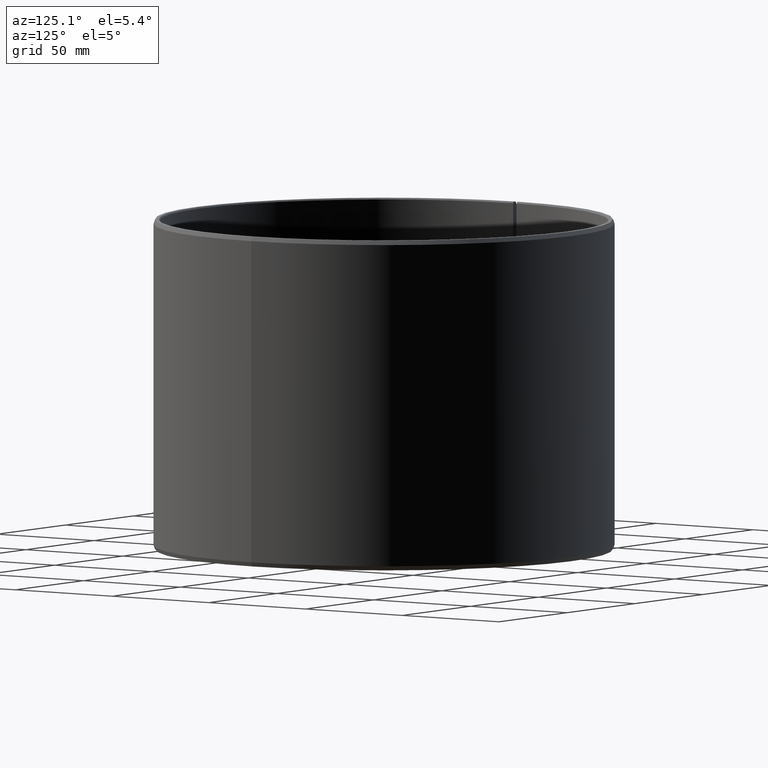
[diagram: clean part render]
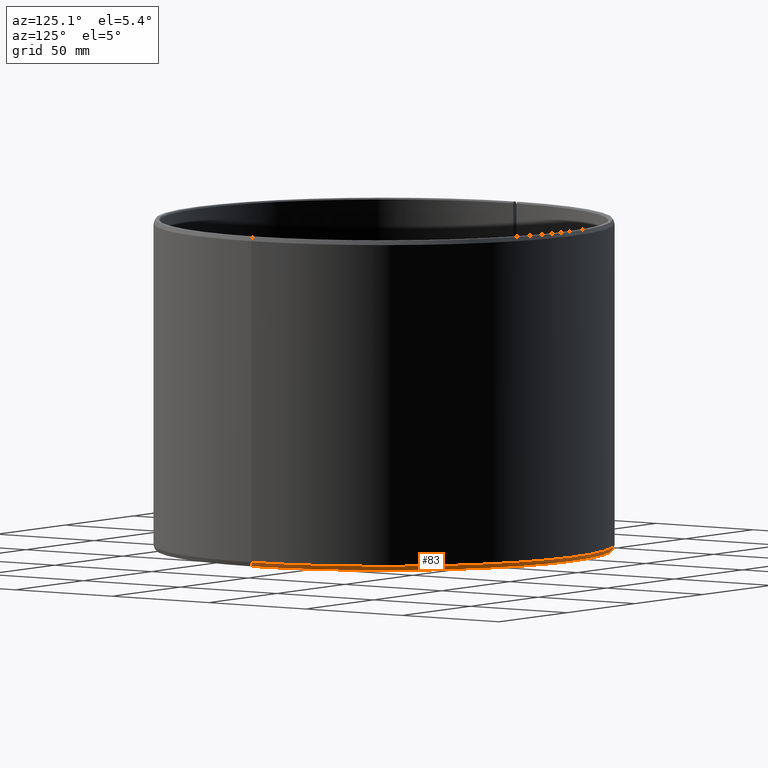
[diagram: same view with one face highlighted and labeled with its STEP entity id]
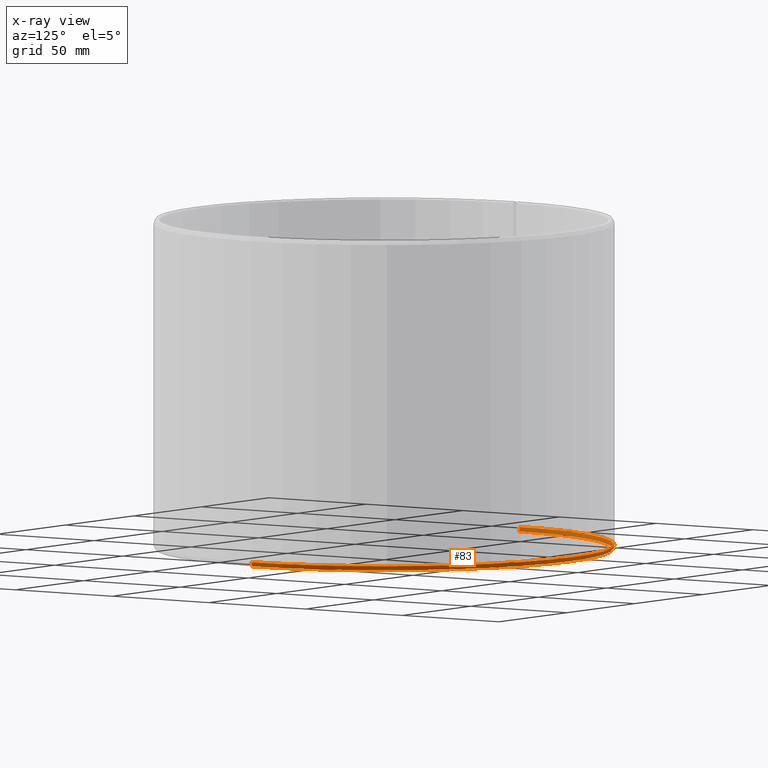
[diagram: x-ray of the same camera — body ghosted, the highlighted face saturated]
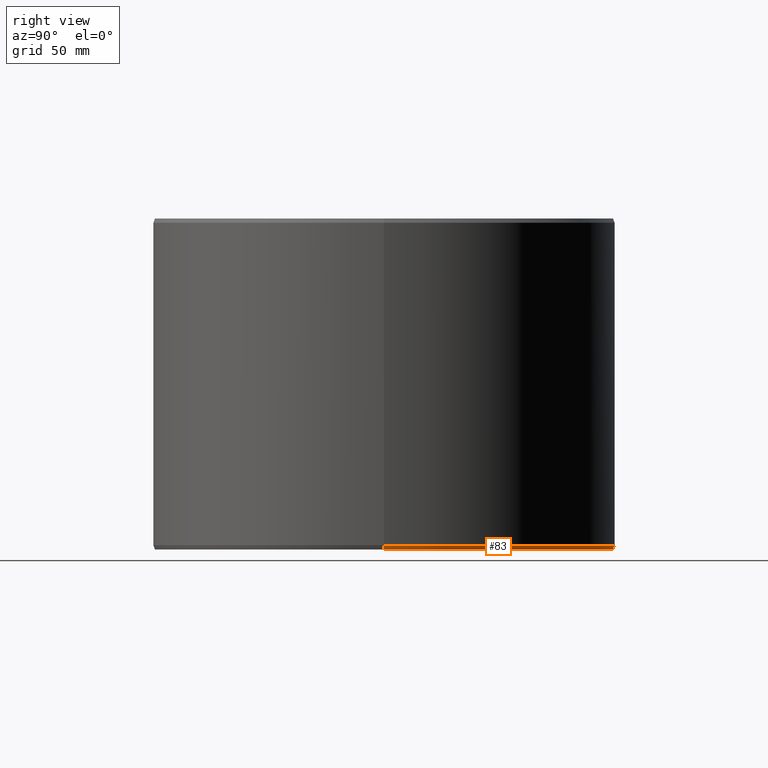
[diagram: same view with one face highlighted and labeled with its STEP entity id]
A machine part, auxiliary view. The second image highlights one B-rep face of the part: STEP entity #83.
The next image is the same camera in x-ray: the body ghosted, the highlighted face saturated — about 22% of this face is hidden behind the body in this view.
A second angle (right view) of the same face is appended — the face is thin or edge-on in the first view.
In plain terms, the highlighted conical surface has half-angle 20 deg.
Its self-contained STEP definition (entity closure, byte-faithful):
#83=ADVANCED_FACE('',(#108),#109,.T.);
#108=FACE_OUTER_BOUND('',#140,.T.);
#109=CONICAL_SURFACE('',#141,97.1724267891604,0.349065850398863);
#140=EDGE_LOOP('',(#214,#215,#216,#217));
#141=AXIS2_PLACEMENT_3D('',#218,#219,#220);
#214=ORIENTED_EDGE('',*,*,#294,.T.);
#215=ORIENTED_EDGE('',*,*,#304,.T.);
#216=ORIENTED_EDGE('',*,*,#306,.T.);
#217=ORIENTED_EDGE('',*,*,#307,.F.);
#218=CARTESIAN_POINT('',(8.47140465882374E-016,-1.25277805830959E-015,0.9));
#219=DIRECTION('',(5.48707263966375E-016,-6.09939603923743E-016,1.0));
#220=DIRECTION('',(-1.0,1.89882151931499E-015,5.48707263966376E-016));
#294=EDGE_CURVE('',#339,#344,#345,.T.);
#304=EDGE_CURVE('',#344,#359,#361,.T.);
#306=EDGE_CURVE('',#359,#363,#364,.T.);
#307=EDGE_CURVE('',#339,#363,#365,.T.);
#339=VERTEX_POINT('',#407);
#344=VERTEX_POINT('',#414);
#345=LINE('',#415,#416);
#359=VERTEX_POINT('',#434);
#361=CIRCLE('',#437,96.8448535783209);
#363=VERTEX_POINT('',#440);
#364=LINE('',#441,#442);
#365=CIRCLE('',#443,97.5);
#407=CARTESIAN_POINT('',(97.5,-1.98877128126739E-013,1.79999999999995));
#414=CARTESIAN_POINT('',(96.8448535783209,-1.96454998419061E-013,-5.1696184704172E-014));
#415=CARTESIAN_POINT('',(97.1724267891604,-1.976660632729E-013,0.899999999999947));
#416=VECTOR('',#490,1.0);
#434=CARTESIAN_POINT('',(-96.8301036380423,1.69017574600826,5.55114153910367E-014));
#437=AXIS2_PLACEMENT_3D('',#508,#509,#510);
#440=CARTESIAN_POINT('',(-97.4851502777482,1.70160962763533,1.80000000000005));
#441=CARTESIAN_POINT('',(-96.8301036380423,1.69017574600825,5.63632996587508E-014));
#442=VECTOR('',#512,10.0);
#443=AXIS2_PLACEMENT_3D('',#513,#514,#515);
#490=DIRECTION('',(-0.342020143325666,1.26447634049496E-015,-0.939692620785909));
#508=CARTESIAN_POINT('',(3.53303928312638E-016,-7.58941520739854E-016,1.40055521273414E-015));
#509=DIRECTION('',(5.48707263966375E-016,-6.09939603923743E-016,1.0));
#510=DIRECTION('',(-1.0,1.89882151931499E-015,5.48707263966376E-016));
#512=DIRECTION('',(-0.341968052001225,0.00596907455105762,0.93969262078591));
#513=CARTESIAN_POINT('',(1.34097700345211E-015,-1.74661459587933E-015,1.8));
#514=DIRECTION('',(5.48707263966375E-016,-6.09939603923743E-016,1.0));
#515=DIRECTION('',(-1.0,1.89882151931499E-015,5.48707263966376E-016));